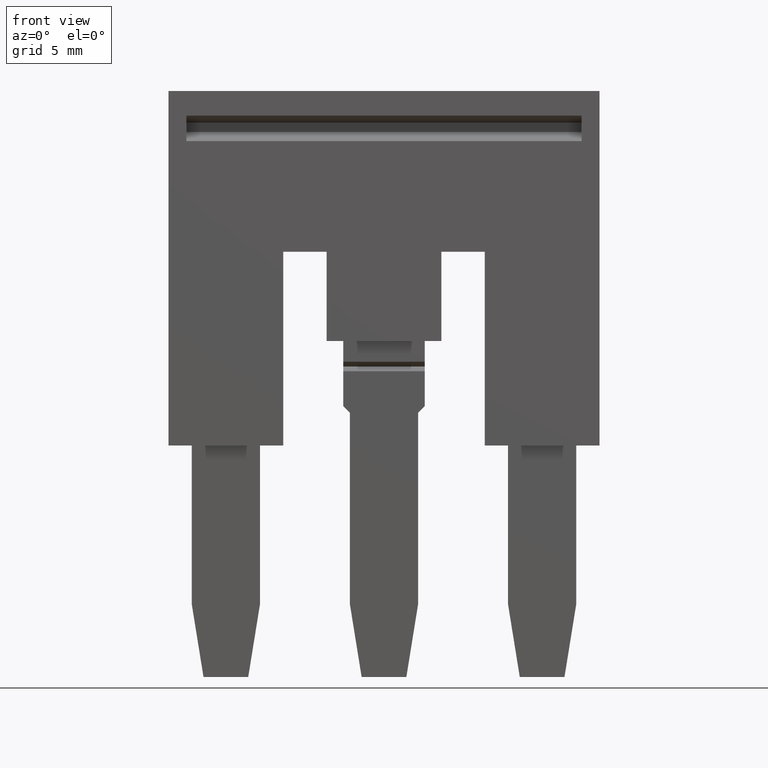
[diagram: clean part render]
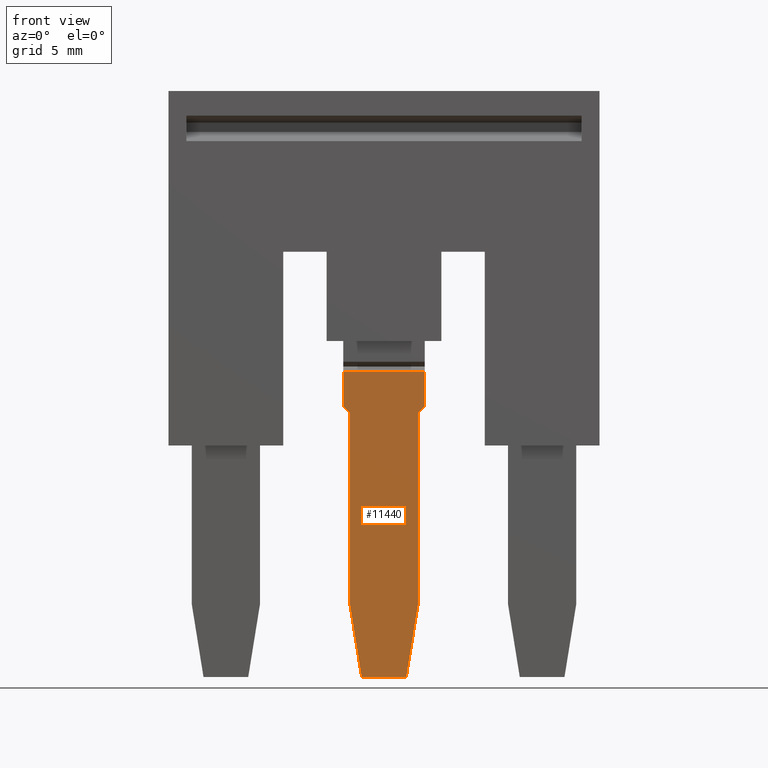
[diagram: same view with one face highlighted and labeled with its STEP entity id]
A machine part, front view. The second image highlights one B-rep face of the part: STEP entity #11440.
In plain terms, the highlighted planar face has unit normal (-0, -1, -0).
Its self-contained STEP definition (entity closure, byte-faithful):
#8660=CARTESIAN_POINT('',(4.9071672216951,-12.305124,53.5999999999964));
#8670=DIRECTION('',(-1.23259516440783E-32,-1.,6.12323399573677E-17));
#8680=VECTOR('',#8670,1.);
#8690=LINE('',#8660,#8680);
#8700=CARTESIAN_POINT('',(4.9071672216951,-21.7849999999947,
53.5999999999964));
#8710=VERTEX_POINT('',#8700);
#8720=CARTESIAN_POINT('',(4.9071672216951,-29.2807420565088,
53.5999999999964));
#8730=VERTEX_POINT('',#8720);
#8740=EDGE_CURVE('',#8710,#8730,#8690,.T.);
#9080=CARTESIAN_POINT('',(4.9071672216951,-32.1500000022916,
53.1368109480382));
#9090=VERTEX_POINT('',#9080);
#9140=CARTESIAN_POINT('',(4.9071672216951,-12.305124,56.3404020769704));
#9150=DIRECTION('',(-1.38777878078145E-17,0.987219178105449,
0.159368423411924));
#9160=VECTOR('',#9150,1.);
#9170=LINE('',#9140,#9160);
#9180=EDGE_CURVE('',#9090,#8730,#9170,.T.);
#9390=CARTESIAN_POINT('',(4.9071672216951,-32.1500000022914,
51.3831890519632));
#9400=VERTEX_POINT('',#9390);
#9430=CARTESIAN_POINT('',(4.90716722169511,-12.305124,48.179597923031));
#9440=DIRECTION('',(-1.38777878078145E-17,-0.987219178105449,
0.159368423411924));
#9450=VECTOR('',#9440,1.);
#9460=LINE('',#9430,#9450);
#9470=CARTESIAN_POINT('',(4.90716722169511,-29.2807420505003,
50.9199999990351));
#9480=VERTEX_POINT('',#9470);
#9490=EDGE_CURVE('',#9480,#9400,#9460,.T.);
#10270=CARTESIAN_POINT('',(4.90716722169511,-12.305124,50.6599999999998)
);
#10280=DIRECTION('',(0.,-1.,0.));
#10290=VECTOR('',#10280,1.);
#10300=LINE('',#10270,#10290);
#10310=CARTESIAN_POINT('',(4.90716722169511,-20.1610705415548,
50.6599999999998));
#10320=VERTEX_POINT('',#10310);
#10330=CARTESIAN_POINT('',(4.9071672216951,-21.5249999999983,
50.6599999999998));
#10340=VERTEX_POINT('',#10330);
#10350=EDGE_CURVE('',#10320,#10340,#10300,.T.);
#10910=CARTESIAN_POINT('',(4.90716722169511,-28.7086780250799,
40.7323702740736));
#10920=DIRECTION('',(1.,0.,1.22464679914735E-16));
#10930=DIRECTION('',(0.,-1.,0.));
#10940=AXIS2_PLACEMENT_3D('',#10910,#10920,#10930);
#10950=PLANE('',#10940);
#10960=ORIENTED_EDGE('',*,*,#9180,.F.);
#10970=ORIENTED_EDGE('',*,*,#8740,.T.);
#10980=CARTESIAN_POINT('',(4.90716722169511,-28.3100159999358,47.074984)
);
#10990=DIRECTION('',(5.55111512312578E-17,-0.707106781183552,
-0.707106781189543));
#11000=VECTOR('',#10990,1.);
#11010=LINE('',#10980,#11000);
#11020=CARTESIAN_POINT('',(4.9071672216951,-21.5249999999912,
53.860000000002));
#11030=VERTEX_POINT('',#11020);
#11040=EDGE_CURVE('',#11030,#8710,#11010,.T.);
#11050=ORIENTED_EDGE('',*,*,#11040,.T.);
#11060=CARTESIAN_POINT('',(4.9071672216951,-12.305124,53.860000000002));
#11070=DIRECTION('',(0.,1.,0.));
#11080=VECTOR('',#11070,1.);
#11090=LINE('',#11060,#11080);
#11100=CARTESIAN_POINT('',(4.9071672216951,-20.1610705415551,
53.8599999999989));
#11110=VERTEX_POINT('',#11100);
#11120=EDGE_CURVE('',#11030,#11110,#11090,.T.);
#11130=ORIENTED_EDGE('',*,*,#11120,.F.);
#11140=CARTESIAN_POINT('',(4.90716722169511,-20.1610705415546,47.074984)
);
#11150=DIRECTION('',(-1.22464679914737E-16,-7.67655547419615E-14,1.));
#11160=VECTOR('',#11150,1.);
#11170=LINE('',#11140,#11160);
#11180=EDGE_CURVE('',#10320,#11110,#11170,.T.);
#11190=ORIENTED_EDGE('',*,*,#11180,.T.);
#11200=ORIENTED_EDGE('',*,*,#10350,.F.);
#11210=CARTESIAN_POINT('',(4.90716722169511,-17.9399840000105,47.074984)
);
#11220=DIRECTION('',(1.11022302462516E-16,0.707106781185369,
-0.707106781187726));
#11230=VECTOR('',#11220,1.);
#11240=LINE('',#11210,#11230);
#11250=CARTESIAN_POINT('',(4.90716722169511,-21.7849999990328,
50.9199999990351));
#11260=VERTEX_POINT('',#11250);
#11270=EDGE_CURVE('',#11260,#10340,#11240,.T.);
#11280=ORIENTED_EDGE('',*,*,#11270,.T.);
#11290=CARTESIAN_POINT('',(4.90716722169511,-12.305124,50.9199999990351)
);
#11300=DIRECTION('',(-1.84889274661175E-32,1.,9.11930314421364E-17));
#11310=VECTOR('',#11300,1.);
#11320=LINE('',#11290,#11310);
#11330=EDGE_CURVE('',#9480,#11260,#11320,.T.);
#11340=ORIENTED_EDGE('',*,*,#11330,.T.);
#11350=ORIENTED_EDGE('',*,*,#9490,.F.);
#11360=CARTESIAN_POINT('',(4.90716722169511,-32.1500000022907,47.074984)
);
#11370=DIRECTION('',(1.22464679914735E-16,1.44960956186225E-13,-1.));
#11380=VECTOR('',#11370,1.);
#11390=LINE('',#11360,#11380);
#11400=EDGE_CURVE('',#9090,#9400,#11390,.T.);
#11410=ORIENTED_EDGE('',*,*,#11400,.T.);
#11420=EDGE_LOOP('',(#11410,#11350,#11340,#11280,#11200,#11190,#11130,
#11050,#10970,#10960));
#11430=FACE_OUTER_BOUND('',#11420,.T.);
#11440=ADVANCED_FACE('',(#11430),#10950,.T.);